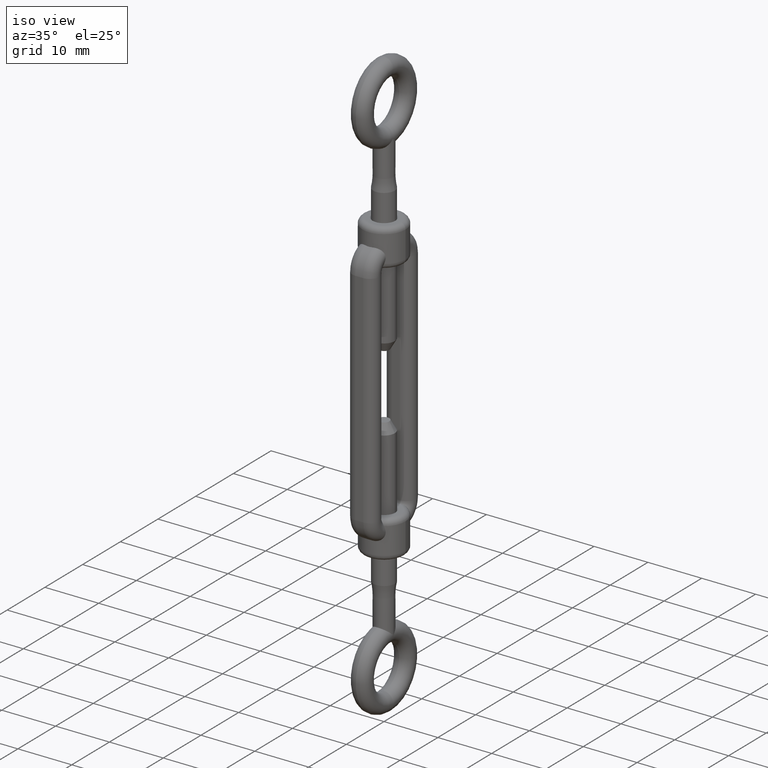
[diagram: clean part render]
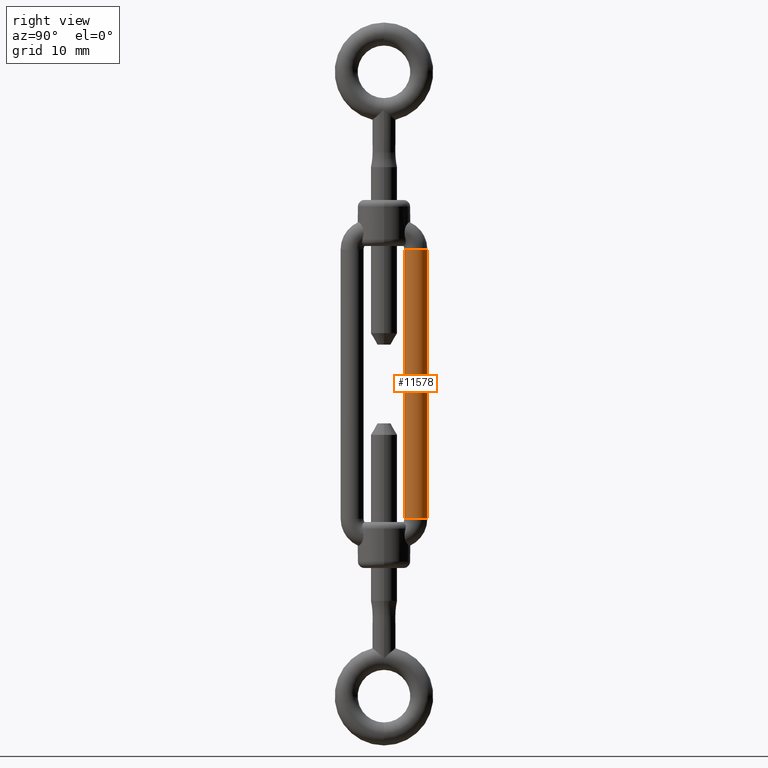
[diagram: tour spotlight — one face highlighted and labeled with its STEP entity id]
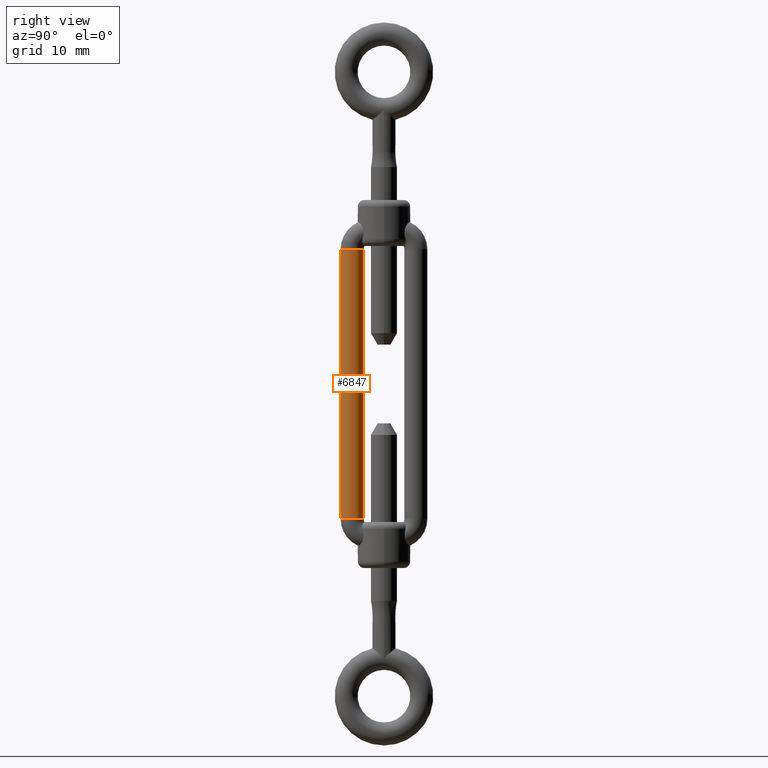
[diagram: tour spotlight — one face highlighted and labeled with its STEP entity id]
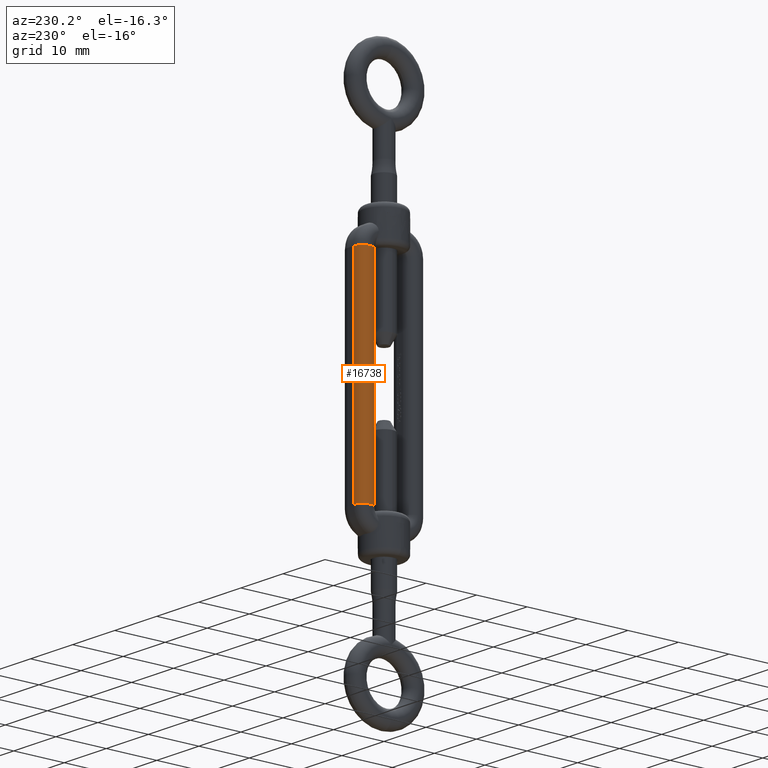
[diagram: tour spotlight — one face highlighted and labeled with its STEP entity id]
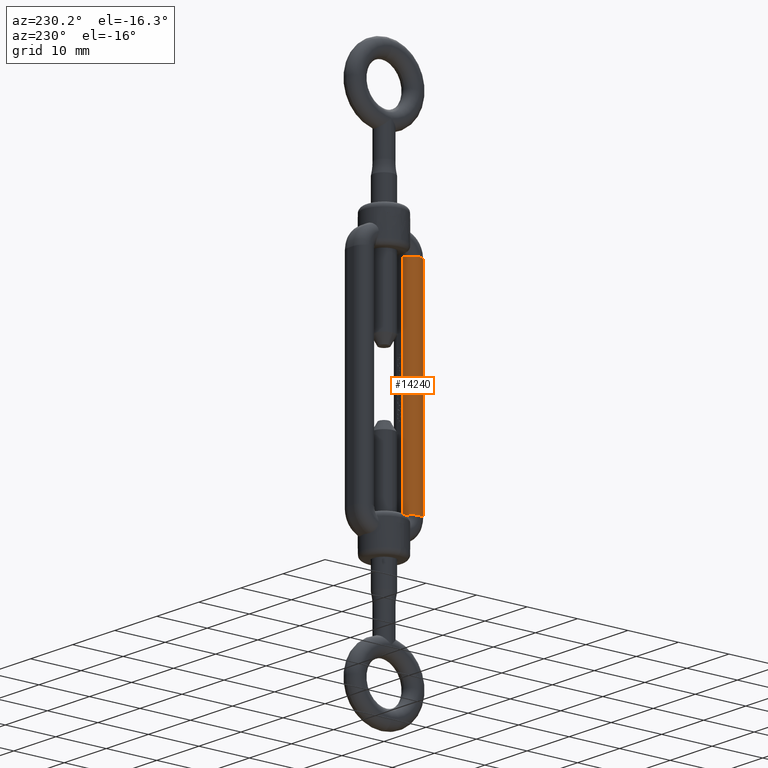
[diagram: tour spotlight — one face highlighted and labeled with its STEP entity id]
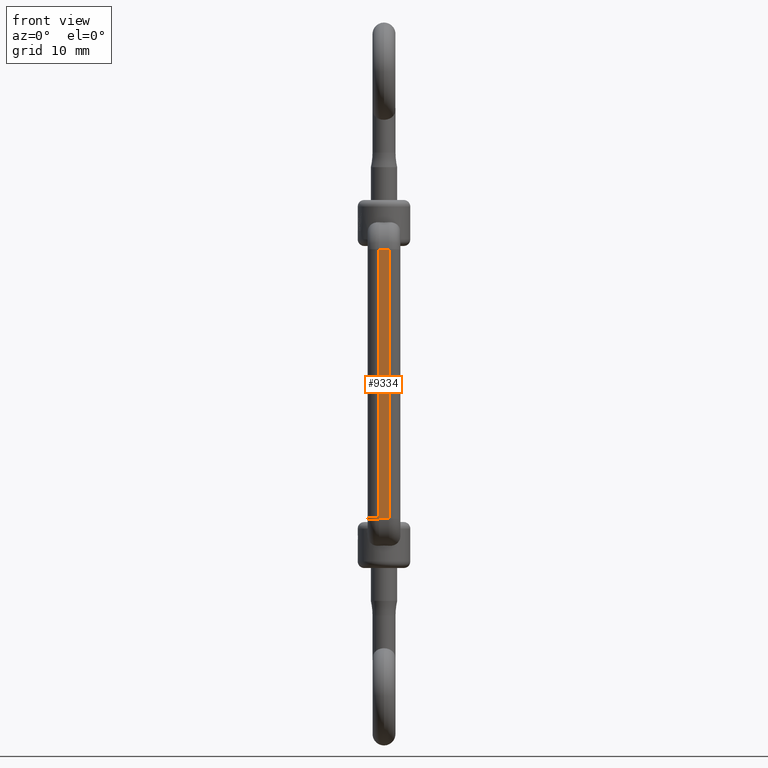
[diagram: tour spotlight — one face highlighted and labeled with its STEP entity id]
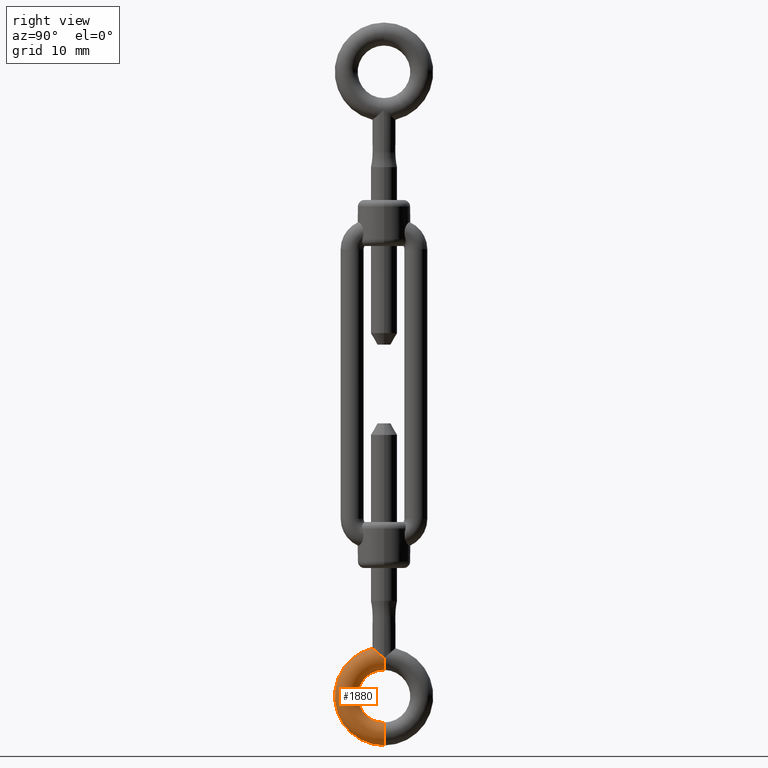
[diagram: tour spotlight — one face highlighted and labeled with its STEP entity id]
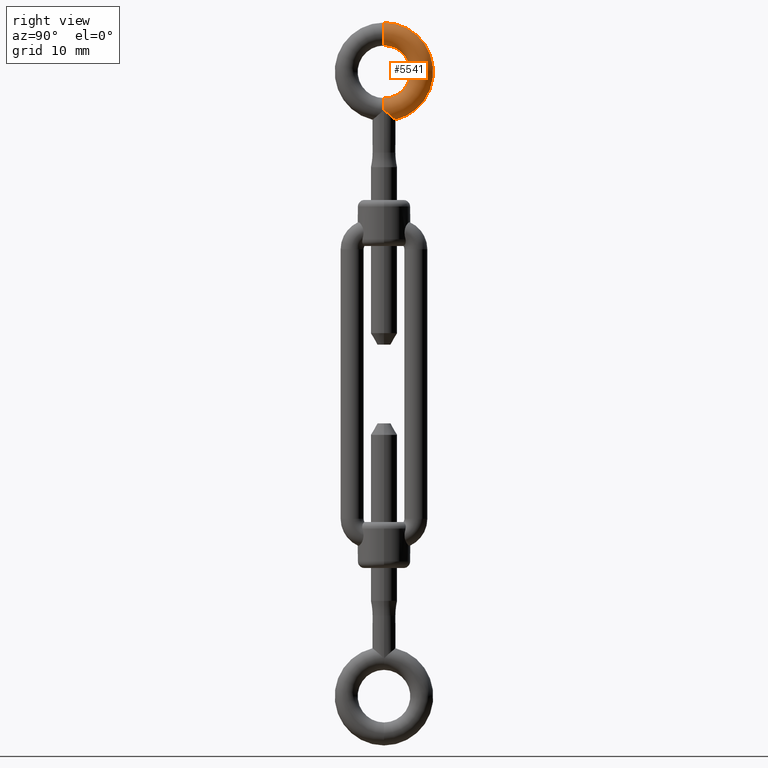
[diagram: tour spotlight — one face highlighted and labeled with its STEP entity id]
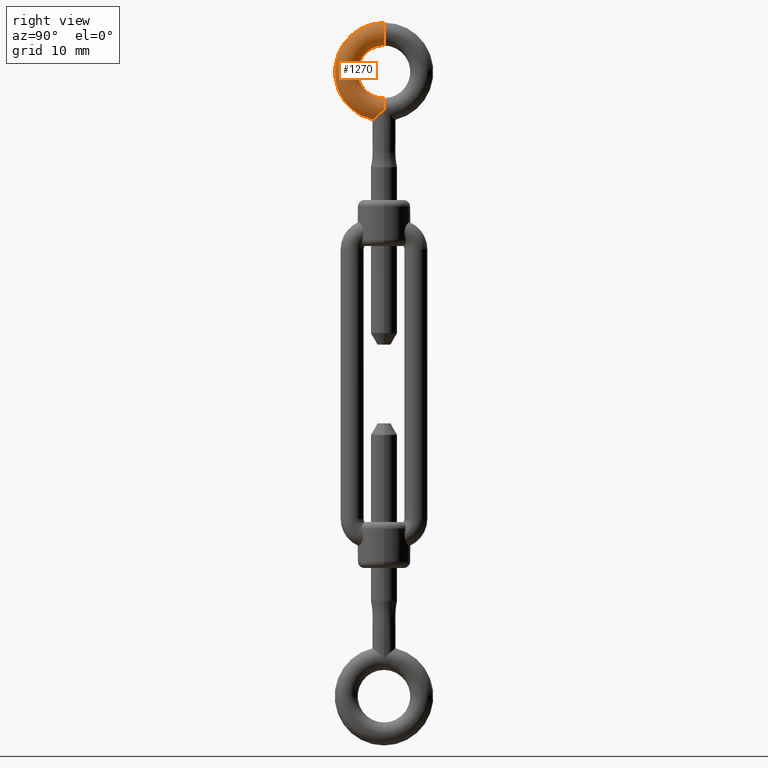
[diagram: tour spotlight — one face highlighted and labeled with its STEP entity id]
A machine part: a face-by-face anatomy tour. The part has 335 B-rep faces; the first image is the clean iso view, then the 8 largest visible faces are spotlighted one at a time (largest first), each with its STEP entity span.

Face 1 — right view, entity #11578. In plain terms, the highlighted cylindrical surface (edge-blend (fillet) strip) has radius 1.75 mm, axis along (0, -0, -1).
Definition (entity closure, byte-faithful):
#386 = VERTEX_POINT ( 'NONE', #1164 ) ;
#595 = DIRECTION ( 'NONE',  ( 0.0000000000000000000, -1.057758217059028900E-016, -1.000000000000000000 ) ) ;
#853 = LINE ( 'NONE', #10167, #12207 ) ;
#1164 = CARTESIAN_POINT ( 'NONE',  ( 0.7499999999999984500, 6.600000000000011200, -20.50000000000001100 ) ) ;
#2039 = AXIS2_PLACEMENT_3D ( 'NONE', #13196, #2549, #3950 ) ;
#2063 = CIRCLE ( 'NONE', #3704, 1.750000000000005100 ) ;
#2549 = DIRECTION ( 'NONE',  ( 0.0000000000000000000, -1.057758217059028900E-016, -1.000000000000000000 ) ) ;
#2746 = VERTEX_POINT ( 'NONE', #14922 ) ;
#2844 = FACE_OUTER_BOUND ( 'NONE', #8860, .T. ) ;
#3089 = DIRECTION ( 'NONE',  ( 0.0000000000000000000, -3.047392128993070700E-015, -1.000000000000000000 ) ) ;
#3170 = ORIENTED_EDGE ( 'NONE', *, *, #7733, .T. ) ;
#3320 = VERTEX_POINT ( 'NONE', #7524 ) ;
#3341 = VERTEX_POINT ( 'NONE', #3486 ) ;
#3486 = CARTESIAN_POINT ( 'NONE',  ( 0.7499999999999984500, 3.100000000000005400, 20.49999999999999300 ) ) ;
#3704 = AXIS2_PLACEMENT_3D ( 'NONE', #14894, #6975, #13551 ) ;
#3950 = DIRECTION ( 'NONE',  ( 0.0000000000000000000, 1.000000000000000000, 0.0000000000000000000 ) ) ;
#4870 = CIRCLE ( 'NONE', #10796, 1.750000000000005100 ) ;
#5246 = ORIENTED_EDGE ( 'NONE', *, *, #14179, .T. ) ;
#5540 = DIRECTION ( 'NONE',  ( 0.0000000000000000000, 1.000000000000000000, -3.965082230804118800E-015 ) ) ;
#6975 = DIRECTION ( 'NONE',  ( 0.0000000000000000000, -3.047392128993070700E-015, -1.000000000000000000 ) ) ;
#7524 = CARTESIAN_POINT ( 'NONE',  ( 0.7499999999999984500, 3.100000000000001000, -20.50000000000000000 ) ) ;
#7733 = EDGE_CURVE ( 'NONE', #3341, #3320, #12517, .T. ) ;
#8602 = ORIENTED_EDGE ( 'NONE', *, *, #9119, .F. ) ;
#8860 = EDGE_LOOP ( 'NONE', ( #5246, #3170, #8602, #9012 ) ) ;
#9012 = ORIENTED_EDGE ( 'NONE', *, *, #9361, .F. ) ;
#9119 = EDGE_CURVE ( 'NONE', #386, #3320, #2063, .T. ) ;
#9361 = EDGE_CURVE ( 'NONE', #2746, #386, #853, .T. ) ;
#9429 = VECTOR ( 'NONE', #595, 1000.000000000000000 ) ;
#10167 = CARTESIAN_POINT ( 'NONE',  ( 0.7499999999999984500, 6.600000000000015600, 20.49999999999998200 ) ) ;
#10796 = AXIS2_PLACEMENT_3D ( 'NONE', #16301, #3089, #5540 ) ;
#11578 = ADVANCED_FACE ( 'NONE', ( #2844 ), #15690, .T. ) ;
#12207 = VECTOR ( 'NONE', #12834, 1000.000000000000000 ) ;
#12408 = CARTESIAN_POINT ( 'NONE',  ( 0.7499999999999984500, 3.100000000000005400, 20.49999999999999300 ) ) ;
#12517 = LINE ( 'NONE', #12408, #9429 ) ;
#12834 = DIRECTION ( 'NONE',  ( 0.0000000000000000000, -1.057758217059028900E-016, -1.000000000000000000 ) ) ;
#13196 = CARTESIAN_POINT ( 'NONE',  ( 0.7499999999999984500, 4.850000000000010300, 20.49999999999998900 ) ) ;
#13551 = DIRECTION ( 'NONE',  ( 0.0000000000000000000, 1.000000000000000000, -3.965082230804118800E-015 ) ) ;
#14179 = EDGE_CURVE ( 'NONE', #2746, #3341, #4870, .T. ) ;
#14894 = CARTESIAN_POINT ( 'NONE',  ( 0.7499999999999984500, 4.850000000000005900, -20.50000000000000400 ) ) ;
#14922 = CARTESIAN_POINT ( 'NONE',  ( 0.7499999999999984500, 6.600000000000015600, 20.49999999999998200 ) ) ;
#15690 = CYLINDRICAL_SURFACE ( 'NONE', #2039, 1.750000000000005100 ) ;
#16301 = CARTESIAN_POINT ( 'NONE',  ( 0.7499999999999984500, 4.850000000000010300, 20.49999999999998900 ) ) ;

Face 2 — right view, entity #6847. In plain terms, the highlighted cylindrical surface (edge-blend (fillet) strip) has radius 1.75 mm, axis along (0, 0, -1).
Definition (entity closure, byte-faithful):
#658 = EDGE_CURVE ( 'NONE', #1441, #14562, #7889, .T. ) ;
#1441 = VERTEX_POINT ( 'NONE', #14668 ) ;
#1545 = ORIENTED_EDGE ( 'NONE', *, *, #9363, .F. ) ;
#1972 = ORIENTED_EDGE ( 'NONE', *, *, #15254, .T. ) ;
#2142 = DIRECTION ( 'NONE',  ( 0.0000000000000000000, 1.057758217059028900E-016, -1.000000000000000000 ) ) ;
#3411 = CARTESIAN_POINT ( 'NONE',  ( 0.7499999999999984500, -6.600000000000015600, 20.49999999999998200 ) ) ;
#3963 = CARTESIAN_POINT ( 'NONE',  ( 0.7499999999999984500, -6.600000000000015600, 20.49999999999998200 ) ) ;
#4108 = CARTESIAN_POINT ( 'NONE',  ( 0.7499999999999984500, -3.100000000000001000, -20.50000000000000000 ) ) ;
#4442 = VERTEX_POINT ( 'NONE', #3411 ) ;
#4700 = CARTESIAN_POINT ( 'NONE',  ( 0.7499999999999984500, -4.850000000000010300, 20.49999999999998900 ) ) ;
#5528 = CYLINDRICAL_SURFACE ( 'NONE', #11873, 1.750000000000005100 ) ;
#6847 = ADVANCED_FACE ( 'NONE', ( #13799 ), #5528, .T. ) ;
#7889 = CIRCLE ( 'NONE', #15179, 1.750000000000005100 ) ;
#8332 = VECTOR ( 'NONE', #15768, 1000.000000000000000 ) ;
#8991 = DIRECTION ( 'NONE',  ( 0.0000000000000000000, -1.000000000000000000, -3.965082230804118800E-015 ) ) ;
#9363 = EDGE_CURVE ( 'NONE', #4442, #14704, #10346, .T. ) ;
#10090 = ORIENTED_EDGE ( 'NONE', *, *, #17131, .F. ) ;
#10225 = AXIS2_PLACEMENT_3D ( 'NONE', #14410, #16943, #8991 ) ;
#10346 = CIRCLE ( 'NONE', #10225, 1.750000000000005100 ) ;
#11200 = LINE ( 'NONE', #16637, #16217 ) ;
#11379 = DIRECTION ( 'NONE',  ( 0.0000000000000000000, 1.000000000000000000, 0.0000000000000000000 ) ) ;
#11468 = CARTESIAN_POINT ( 'NONE',  ( 0.7499999999999984500, -4.850000000000005900, -20.50000000000000400 ) ) ;
#11873 = AXIS2_PLACEMENT_3D ( 'NONE', #4700, #2142, #11379 ) ;
#12327 = ORIENTED_EDGE ( 'NONE', *, *, #658, .T. ) ;
#12467 = CARTESIAN_POINT ( 'NONE',  ( 0.7499999999999984500, -3.100000000000005400, 20.49999999999999300 ) ) ;
#12565 = DIRECTION ( 'NONE',  ( -0.0000000000000000000, -3.047392128993070700E-015, 1.000000000000000000 ) ) ;
#13799 = FACE_OUTER_BOUND ( 'NONE', #16740, .T. ) ;
#14410 = CARTESIAN_POINT ( 'NONE',  ( 0.7499999999999984500, -4.850000000000010300, 20.49999999999998900 ) ) ;
#14562 = VERTEX_POINT ( 'NONE', #4108 ) ;
#14668 = CARTESIAN_POINT ( 'NONE',  ( 0.7499999999999984500, -6.600000000000011200, -20.50000000000001100 ) ) ;
#14704 = VERTEX_POINT ( 'NONE', #12467 ) ;
#15179 = AXIS2_PLACEMENT_3D ( 'NONE', #11468, #12565, #16592 ) ;
#15254 = EDGE_CURVE ( 'NONE', #4442, #1441, #16249, .T. ) ;
#15308 = DIRECTION ( 'NONE',  ( 0.0000000000000000000, 1.057758217059028900E-016, -1.000000000000000000 ) ) ;
#15768 = DIRECTION ( 'NONE',  ( 0.0000000000000000000, 1.057758217059028900E-016, -1.000000000000000000 ) ) ;
#16217 = VECTOR ( 'NONE', #15308, 1000.000000000000000 ) ;
#16249 = LINE ( 'NONE', #3963, #8332 ) ;
#16592 = DIRECTION ( 'NONE',  ( 0.0000000000000000000, -1.000000000000000000, -3.965082230804118800E-015 ) ) ;
#16637 = CARTESIAN_POINT ( 'NONE',  ( 0.7499999999999984500, -3.100000000000005400, 20.49999999999999300 ) ) ;
#16740 = EDGE_LOOP ( 'NONE', ( #1545, #1972, #12327, #10090 ) ) ;
#16943 = DIRECTION ( 'NONE',  ( -0.0000000000000000000, -3.047392128993070700E-015, 1.000000000000000000 ) ) ;
#17131 = EDGE_CURVE ( 'NONE', #14704, #14562, #11200, .T. ) ;

Face 3 — auxiliary view, entity #16738. In plain terms, the highlighted cylindrical surface (edge-blend (fillet) strip) has radius 1.75 mm, axis along (0, -0, -1).
Definition (entity closure, byte-faithful):
#382 = LINE ( 'NONE', #13721, #9232 ) ;
#417 = VECTOR ( 'NONE', #1858, 1000.000000000000000 ) ;
#840 = EDGE_LOOP ( 'NONE', ( #13885, #3067, #14879, #17033 ) ) ;
#1030 = AXIS2_PLACEMENT_3D ( 'NONE', #14880, #4251, #14770 ) ;
#1431 = VERTEX_POINT ( 'NONE', #9262 ) ;
#1514 = DIRECTION ( 'NONE',  ( 0.0000000000000000000, 1.000000000000000000, 0.0000000000000000000 ) ) ;
#1744 = CARTESIAN_POINT ( 'NONE',  ( -0.7499999999999984500, 6.600000000000011200, -20.50000000000001100 ) ) ;
#1858 = DIRECTION ( 'NONE',  ( 0.0000000000000000000, -1.057758217059028900E-016, -1.000000000000000000 ) ) ;
#2060 = VERTEX_POINT ( 'NONE', #10613 ) ;
#2672 = DIRECTION ( 'NONE',  ( 0.0000000000000000000, -1.057758217059028900E-016, -1.000000000000000000 ) ) ;
#2834 = CARTESIAN_POINT ( 'NONE',  ( -0.7499999999999984500, 4.850000000000005900, -20.50000000000000400 ) ) ;
#3067 = ORIENTED_EDGE ( 'NONE', *, *, #4199, .T. ) ;
#3444 = CIRCLE ( 'NONE', #6145, 1.750000000000005100 ) ;
#4104 = VERTEX_POINT ( 'NONE', #13493 ) ;
#4199 = EDGE_CURVE ( 'NONE', #1431, #12245, #10105, .T. ) ;
#4251 = DIRECTION ( 'NONE',  ( 0.0000000000000000000, -3.047392128993070700E-015, -1.000000000000000000 ) ) ;
#4702 = CARTESIAN_POINT ( 'NONE',  ( -0.7499999999999984500, 6.600000000000015600, 20.49999999999998200 ) ) ;
#5510 = EDGE_CURVE ( 'NONE', #4104, #1431, #13403, .T. ) ;
#6145 = AXIS2_PLACEMENT_3D ( 'NONE', #2834, #8080, #10686 ) ;
#6514 = EDGE_CURVE ( 'NONE', #4104, #2060, #382, .T. ) ;
#7241 = EDGE_CURVE ( 'NONE', #2060, #12245, #3444, .T. ) ;
#7681 = FACE_OUTER_BOUND ( 'NONE', #840, .T. ) ;
#8062 = AXIS2_PLACEMENT_3D ( 'NONE', #12145, #2672, #1514 ) ;
#8080 = DIRECTION ( 'NONE',  ( 0.0000000000000000000, -3.047392128993070700E-015, -1.000000000000000000 ) ) ;
#9232 = VECTOR ( 'NONE', #12265, 1000.000000000000000 ) ;
#9262 = CARTESIAN_POINT ( 'NONE',  ( -0.7499999999999984500, 6.600000000000015600, 20.49999999999998200 ) ) ;
#9550 = CYLINDRICAL_SURFACE ( 'NONE', #8062, 1.750000000000005100 ) ;
#10105 = LINE ( 'NONE', #4702, #417 ) ;
#10613 = CARTESIAN_POINT ( 'NONE',  ( -0.7499999999999984500, 3.100000000000001000, -20.50000000000000000 ) ) ;
#10686 = DIRECTION ( 'NONE',  ( 0.0000000000000000000, 1.000000000000000000, -3.965082230804118800E-015 ) ) ;
#12145 = CARTESIAN_POINT ( 'NONE',  ( -0.7499999999999984500, 4.850000000000010300, 20.49999999999998900 ) ) ;
#12245 = VERTEX_POINT ( 'NONE', #1744 ) ;
#12265 = DIRECTION ( 'NONE',  ( 0.0000000000000000000, -1.057758217059028900E-016, -1.000000000000000000 ) ) ;
#13403 = CIRCLE ( 'NONE', #1030, 1.750000000000005100 ) ;
#13493 = CARTESIAN_POINT ( 'NONE',  ( -0.7499999999999984500, 3.100000000000005400, 20.49999999999999300 ) ) ;
#13721 = CARTESIAN_POINT ( 'NONE',  ( -0.7499999999999984500, 3.100000000000005400, 20.49999999999999300 ) ) ;
#13885 = ORIENTED_EDGE ( 'NONE', *, *, #5510, .T. ) ;
#14770 = DIRECTION ( 'NONE',  ( 0.0000000000000000000, 1.000000000000000000, -3.965082230804118800E-015 ) ) ;
#14879 = ORIENTED_EDGE ( 'NONE', *, *, #7241, .F. ) ;
#14880 = CARTESIAN_POINT ( 'NONE',  ( -0.7499999999999984500, 4.850000000000010300, 20.49999999999998900 ) ) ;
#16738 = ADVANCED_FACE ( 'NONE', ( #7681 ), #9550, .T. ) ;
#17033 = ORIENTED_EDGE ( 'NONE', *, *, #6514, .F. ) ;

Face 4 — auxiliary view, entity #14240. In plain terms, the highlighted cylindrical surface (edge-blend (fillet) strip) has radius 1.75 mm, axis along (0, 0, -1).
Definition (entity closure, byte-faithful):
#122 = ORIENTED_EDGE ( 'NONE', *, *, #3065, .T. ) ;
#267 = AXIS2_PLACEMENT_3D ( 'NONE', #15820, #278, #10861 ) ;
#278 = DIRECTION ( 'NONE',  ( -0.0000000000000000000, -3.047392128993070700E-015, 1.000000000000000000 ) ) ;
#1596 = DIRECTION ( 'NONE',  ( 0.0000000000000000000, 1.057758217059028900E-016, -1.000000000000000000 ) ) ;
#1699 = CARTESIAN_POINT ( 'NONE',  ( -0.7499999999999984500, -4.850000000000010300, 20.49999999999998900 ) ) ;
#2052 = VECTOR ( 'NONE', #4969, 1000.000000000000000 ) ;
#2256 = DIRECTION ( 'NONE',  ( 0.0000000000000000000, -1.000000000000000000, -3.965082230804118800E-015 ) ) ;
#2864 = VERTEX_POINT ( 'NONE', #16322 ) ;
#3065 = EDGE_CURVE ( 'NONE', #9792, #2864, #8054, .T. ) ;
#3632 = ORIENTED_EDGE ( 'NONE', *, *, #15512, .F. ) ;
#4260 = FACE_OUTER_BOUND ( 'NONE', #10185, .T. ) ;
#4375 = VERTEX_POINT ( 'NONE', #10802 ) ;
#4407 = AXIS2_PLACEMENT_3D ( 'NONE', #14354, #8818, #2256 ) ;
#4969 = DIRECTION ( 'NONE',  ( 0.0000000000000000000, 1.057758217059028900E-016, -1.000000000000000000 ) ) ;
#5507 = EDGE_CURVE ( 'NONE', #2864, #4375, #10290, .T. ) ;
#7407 = DIRECTION ( 'NONE',  ( 0.0000000000000000000, 1.057758217059028900E-016, -1.000000000000000000 ) ) ;
#7603 = CARTESIAN_POINT ( 'NONE',  ( -0.7499999999999984500, -3.100000000000005400, 20.49999999999999300 ) ) ;
#8050 = CARTESIAN_POINT ( 'NONE',  ( -0.7499999999999984500, -6.600000000000015600, 20.49999999999998200 ) ) ;
#8054 = LINE ( 'NONE', #7603, #2052 ) ;
#8818 = DIRECTION ( 'NONE',  ( -0.0000000000000000000, -3.047392128993070700E-015, 1.000000000000000000 ) ) ;
#8952 = ORIENTED_EDGE ( 'NONE', *, *, #11023, .F. ) ;
#9052 = LINE ( 'NONE', #11493, #13833 ) ;
#9225 = VERTEX_POINT ( 'NONE', #8050 ) ;
#9792 = VERTEX_POINT ( 'NONE', #12221 ) ;
#10185 = EDGE_LOOP ( 'NONE', ( #3632, #122, #12451, #8952 ) ) ;
#10290 = CIRCLE ( 'NONE', #267, 1.750000000000005100 ) ;
#10802 = CARTESIAN_POINT ( 'NONE',  ( -0.7499999999999984500, -6.600000000000011200, -20.50000000000001100 ) ) ;
#10826 = DIRECTION ( 'NONE',  ( 0.0000000000000000000, 1.000000000000000000, 0.0000000000000000000 ) ) ;
#10861 = DIRECTION ( 'NONE',  ( 0.0000000000000000000, -1.000000000000000000, -3.965082230804118800E-015 ) ) ;
#11023 = EDGE_CURVE ( 'NONE', #9225, #4375, #9052, .T. ) ;
#11493 = CARTESIAN_POINT ( 'NONE',  ( -0.7499999999999984500, -6.600000000000015600, 20.49999999999998200 ) ) ;
#12104 = CYLINDRICAL_SURFACE ( 'NONE', #14372, 1.750000000000005100 ) ;
#12221 = CARTESIAN_POINT ( 'NONE',  ( -0.7499999999999984500, -3.100000000000005400, 20.49999999999999300 ) ) ;
#12451 = ORIENTED_EDGE ( 'NONE', *, *, #5507, .T. ) ;
#13833 = VECTOR ( 'NONE', #7407, 1000.000000000000000 ) ;
#14240 = ADVANCED_FACE ( 'NONE', ( #4260 ), #12104, .T. ) ;
#14354 = CARTESIAN_POINT ( 'NONE',  ( -0.7499999999999984500, -4.850000000000010300, 20.49999999999998900 ) ) ;
#14372 = AXIS2_PLACEMENT_3D ( 'NONE', #1699, #1596, #10826 ) ;
#15512 = EDGE_CURVE ( 'NONE', #9792, #9225, #15830, .T. ) ;
#15820 = CARTESIAN_POINT ( 'NONE',  ( -0.7499999999999984500, -4.850000000000005900, -20.50000000000000400 ) ) ;
#15830 = CIRCLE ( 'NONE', #4407, 1.750000000000005100 ) ;
#16322 = CARTESIAN_POINT ( 'NONE',  ( -0.7499999999999984500, -3.100000000000001000, -20.50000000000000000 ) ) ;

Face 5 — front view, entity #9334. In plain terms, the highlighted planar face has unit normal (0, 1, 0).
Definition (entity closure, byte-faithful):
#507 = AXIS2_PLACEMENT_3D ( 'NONE', #6146, #12647, #4746 ) ;
#1441 = VERTEX_POINT ( 'NONE', #14668 ) ;
#2479 = EDGE_CURVE ( 'NONE', #9225, #4442, #8069, .T. ) ;
#3185 = EDGE_CURVE ( 'NONE', #4375, #1441, #12407, .T. ) ;
#3411 = CARTESIAN_POINT ( 'NONE',  ( 0.7499999999999984500, -6.600000000000015600, 20.49999999999998200 ) ) ;
#3963 = CARTESIAN_POINT ( 'NONE',  ( 0.7499999999999984500, -6.600000000000015600, 20.49999999999998200 ) ) ;
#4375 = VERTEX_POINT ( 'NONE', #10802 ) ;
#4442 = VERTEX_POINT ( 'NONE', #3411 ) ;
#4565 = VECTOR ( 'NONE', #6156, 1000.000000000000000 ) ;
#4746 = DIRECTION ( 'NONE',  ( 0.0000000000000000000, -1.057758217059028900E-016, 1.000000000000000000 ) ) ;
#5815 = VECTOR ( 'NONE', #10069, 1000.000000000000000 ) ;
#6146 = CARTESIAN_POINT ( 'NONE',  ( -0.7499999999999984500, -6.600000000000015600, 20.49999999999998200 ) ) ;
#6156 = DIRECTION ( 'NONE',  ( 1.000000000000000000, 0.0000000000000000000, 0.0000000000000000000 ) ) ;
#6346 = CARTESIAN_POINT ( 'NONE',  ( -0.7499999999999984500, -6.600000000000011200, -20.50000000000001100 ) ) ;
#7407 = DIRECTION ( 'NONE',  ( 0.0000000000000000000, 1.057758217059028900E-016, -1.000000000000000000 ) ) ;
#7674 = ORIENTED_EDGE ( 'NONE', *, *, #15254, .F. ) ;
#8050 = CARTESIAN_POINT ( 'NONE',  ( -0.7499999999999984500, -6.600000000000015600, 20.49999999999998200 ) ) ;
#8069 = LINE ( 'NONE', #14072, #4565 ) ;
#8091 = ORIENTED_EDGE ( 'NONE', *, *, #3185, .T. ) ;
#8332 = VECTOR ( 'NONE', #15768, 1000.000000000000000 ) ;
#9052 = LINE ( 'NONE', #11493, #13833 ) ;
#9225 = VERTEX_POINT ( 'NONE', #8050 ) ;
#9334 = ADVANCED_FACE ( 'NONE', ( #15752 ), #11427, .F. ) ;
#10004 = EDGE_LOOP ( 'NONE', ( #12184, #13314, #8091, #7674 ) ) ;
#10069 = DIRECTION ( 'NONE',  ( 1.000000000000000000, 0.0000000000000000000, 0.0000000000000000000 ) ) ;
#10802 = CARTESIAN_POINT ( 'NONE',  ( -0.7499999999999984500, -6.600000000000011200, -20.50000000000001100 ) ) ;
#11023 = EDGE_CURVE ( 'NONE', #9225, #4375, #9052, .T. ) ;
#11427 = PLANE ( 'NONE',  #507 ) ;
#11493 = CARTESIAN_POINT ( 'NONE',  ( -0.7499999999999984500, -6.600000000000015600, 20.49999999999998200 ) ) ;
#12184 = ORIENTED_EDGE ( 'NONE', *, *, #2479, .F. ) ;
#12407 = LINE ( 'NONE', #6346, #5815 ) ;
#12647 = DIRECTION ( 'NONE',  ( -0.0000000000000000000, 1.000000000000000000, 1.057758217059028900E-016 ) ) ;
#13314 = ORIENTED_EDGE ( 'NONE', *, *, #11023, .T. ) ;
#13833 = VECTOR ( 'NONE', #7407, 1000.000000000000000 ) ;
#14072 = CARTESIAN_POINT ( 'NONE',  ( -0.7499999999999984500, -6.600000000000015600, 20.49999999999998200 ) ) ;
#14668 = CARTESIAN_POINT ( 'NONE',  ( 0.7499999999999984500, -6.600000000000011200, -20.50000000000001100 ) ) ;
#15254 = EDGE_CURVE ( 'NONE', #4442, #1441, #16249, .T. ) ;
#15752 = FACE_OUTER_BOUND ( 'NONE', #10004, .T. ) ;
#15768 = DIRECTION ( 'NONE',  ( 0.0000000000000000000, 1.057758217059028900E-016, -1.000000000000000000 ) ) ;
#16249 = LINE ( 'NONE', #3963, #8332 ) ;

Face 6 — right view, entity #1880. In plain terms, the highlighted toroidal blend (fillet) surface has major radius 5.75 mm and minor (blend) radius 1.75 mm.
Definition (entity closure, byte-faithful):
#269 = B_SPLINE_CURVE_WITH_KNOTS ( 'NONE', 3,
 ( #14721, #12095, #1421, #1526, #13438, #4077, #8206, #5521, #16063, #4197, #16229, #13321, #10700, #8096 ),
 .UNSPECIFIED., .F., .F.,
 ( 4, 2, 2, 2, 2, 2, 4 ),
 ( 0.003212995125030894200, 0.004016885392617450300, 0.004418830526410728700, 0.004820775660204007100, 0.005624665927790560600, 0.006026611061583838100, 0.006428556195377114900 ),
 .UNSPECIFIED. ) ;
#863 = ORIENTED_EDGE ( 'NONE', *, *, #1409, .F. ) ;
#879 = FACE_OUTER_BOUND ( 'NONE', #15100, .T. ) ;
#1297 = CARTESIAN_POINT ( 'NONE',  ( 0.0000000000000000000, -3.500000000000000000, -6.039690927702273600E-016 ) ) ;
#1313 = DIRECTION ( 'NONE',  ( 1.000000000000000000, 1.224646799147353200E-016, 1.742794396888373400E-032 ) ) ;
#1409 = EDGE_CURVE ( 'NONE', #3448, #15740, #15775, .T. ) ;
#1421 = CARTESIAN_POINT ( 'NONE',  ( 1.684158228702846500, -14.74143195564925400, 0.5390904376277412300 ) ) ;
#1526 = CARTESIAN_POINT ( 'NONE',  ( 1.517105283262433400, -14.60712424557723700, 0.8814864827718615900 ) ) ;
#1880 = ADVANCED_FACE ( 'NONE', ( #879 ), #16597, .T. ) ;
#1910 = AXIS2_PLACEMENT_3D ( 'NONE', #7596, #6535, #8967 ) ;
#2744 = CARTESIAN_POINT ( 'NONE',  ( 0.0000000000000000000, -7.500000000000000000, -8.182822826210140600E-016 ) ) ;
#2859 = CIRCLE ( 'NONE', #1910, 4.000000000000000000 ) ;
#3040 = CARTESIAN_POINT ( 'NONE',  ( 7.041719095097280900E-016, -13.25000000000000000, -1.636564565242028100E-015 ) ) ;
#3311 = AXIS2_PLACEMENT_3D ( 'NONE', #2744, #10755, #10704 ) ;
#3448 = VERTEX_POINT ( 'NONE', #6687 ) ;
#4077 = CARTESIAN_POINT ( 'NONE',  ( 1.301069729286346900, -14.43026217673550700, 1.176498089493722300 ) ) ;
#4197 = CARTESIAN_POINT ( 'NONE',  ( 0.4813851647967327100, -13.71338959315448300, 1.685603199662730300 ) ) ;
#5239 = DIRECTION ( 'NONE',  ( 0.0000000000000000000, 0.0000000000000000000, 1.000000000000000000 ) ) ;
#5483 = VERTEX_POINT ( 'NONE', #1297 ) ;
#5521 = CARTESIAN_POINT ( 'NONE',  ( 0.9591063090738872800, -14.14182032543251900, 1.481318761564825600 ) ) ;
#5551 = CIRCLE ( 'NONE', #7686, 1.750000000000000000 ) ;
#5794 = VERTEX_POINT ( 'NONE', #10341 ) ;
#6107 = VERTEX_POINT ( 'NONE', #9371 ) ;
#6115 = ORIENTED_EDGE ( 'NONE', *, *, #11553, .F. ) ;
#6535 = DIRECTION ( 'NONE',  ( -0.0000000000000000000, 1.423099621949589700E-016, -1.000000000000000000 ) ) ;
#6687 = CARTESIAN_POINT ( 'NONE',  ( 0.0000000000000000000, 1.084202172485504400E-016, 2.490424338411780800E-016 ) ) ;
#7427 = DIRECTION ( 'NONE',  ( -1.224646799147353500E-016, 1.000000000000000000, 0.0000000000000000000 ) ) ;
#7596 = CARTESIAN_POINT ( 'NONE',  ( 0.0000000000000000000, -7.500000000000000000, -6.039690927702272600E-016 ) ) ;
#7686 = AXIS2_PLACEMENT_3D ( 'NONE', #14026, #11563, #5239 ) ;
#8096 = CARTESIAN_POINT ( 'NONE',  ( -9.552612524160689800E-029, -13.25000000000000000, 1.750000000000022200 ) ) ;
#8206 = CARTESIAN_POINT ( 'NONE',  ( 1.219108316923304100, -14.36204301318948300, 1.260633752513306400 ) ) ;
#8918 = EDGE_CURVE ( 'NONE', #5483, #6107, #2859, .T. ) ;
#8967 = DIRECTION ( 'NONE',  ( 0.0000000000000000000, 1.000000000000000000, 1.423099621949590000E-016 ) ) ;
#9252 = CIRCLE ( 'NONE', #15129, 1.749999999999999800 ) ;
#9371 = CARTESIAN_POINT ( 'NONE',  ( 4.898587196589411800E-016, -11.50000000000000000, -6.039690927702270600E-016 ) ) ;
#9398 = CARTESIAN_POINT ( 'NONE',  ( 1.750000000000000000, -14.79297607290741100, -4.967261505415076400E-015 ) ) ;
#10341 = CARTESIAN_POINT ( 'NONE',  ( -9.552612524160689800E-029, -13.25000000000000000, 1.750000000000022200 ) ) ;
#10700 = CARTESIAN_POINT ( 'NONE',  ( 0.09476379763639382300, -13.34471508476386800, 1.749999999999998700 ) ) ;
#10704 = DIRECTION ( 'NONE',  ( 0.0000000000000000000, 1.000000000000000000, 1.423099621949589700E-016 ) ) ;
#10755 = DIRECTION ( 'NONE',  ( -0.0000000000000000000, 1.423099621949589700E-016, -1.000000000000000000 ) ) ;
#11476 = EDGE_CURVE ( 'NONE', #6107, #5794, #9252, .T. ) ;
#11553 = EDGE_CURVE ( 'NONE', #5483, #3448, #5551, .T. ) ;
#11563 = DIRECTION ( 'NONE',  ( -1.000000000000000000, 0.0000000000000000000, 0.0000000000000000000 ) ) ;
#11640 = CARTESIAN_POINT ( 'NONE',  ( 0.0000000000000000000, -7.500000000000000000, -8.182822826210140600E-016 ) ) ;
#12095 = CARTESIAN_POINT ( 'NONE',  ( 1.750000000000032200, -14.79297607290758000, 0.2700538098490614100 ) ) ;
#12180 = EDGE_CURVE ( 'NONE', #15740, #5794, #269, .T. ) ;
#12421 = ORIENTED_EDGE ( 'NONE', *, *, #11476, .T. ) ;
#12477 = ORIENTED_EDGE ( 'NONE', *, *, #12180, .F. ) ;
#13112 = DIRECTION ( 'NONE',  ( 0.0000000000000000000, 1.000000000000000000, 1.423099621949589700E-016 ) ) ;
#13321 = CARTESIAN_POINT ( 'NONE',  ( 0.1918758031881559500, -13.43948832755127600, 1.742194083755520100 ) ) ;
#13438 = CARTESIAN_POINT ( 'NONE',  ( 1.449626109109677600, -14.55244157765660000, 0.9876812941608048600 ) ) ;
#14026 = CARTESIAN_POINT ( 'NONE',  ( 0.0000000000000000000, -1.749999999999999800, 0.0000000000000000000 ) ) ;
#14721 = CARTESIAN_POINT ( 'NONE',  ( 1.750000000000000000, -14.79297607290741100, -4.967261505415076400E-015 ) ) ;
#14953 = AXIS2_PLACEMENT_3D ( 'NONE', #11640, #15849, #13112 ) ;
#15021 = ORIENTED_EDGE ( 'NONE', *, *, #8918, .T. ) ;
#15100 = EDGE_LOOP ( 'NONE', ( #863, #6115, #15021, #12421, #12477 ) ) ;
#15129 = AXIS2_PLACEMENT_3D ( 'NONE', #3040, #1313, #7427 ) ;
#15740 = VERTEX_POINT ( 'NONE', #9398 ) ;
#15775 = CIRCLE ( 'NONE', #3311, 7.500000000000000000 ) ;
#15849 = DIRECTION ( 'NONE',  ( -0.0000000000000000000, 1.423099621949589700E-016, -1.000000000000000000 ) ) ;
#16063 = CARTESIAN_POINT ( 'NONE',  ( 0.7713981378995125000, -13.97801682233671100, 1.584109910089432500 ) ) ;
#16229 = CARTESIAN_POINT ( 'NONE',  ( 0.3847196433550942300, -13.62333452908117300, 1.709984603830855700 ) ) ;
#16597 = TOROIDAL_SURFACE ( 'NONE', #14953, 5.750000000000000000, 1.750000000000000000 ) ;

Face 7 — right view, entity #5541. In plain terms, the highlighted toroidal blend (fillet) surface has major radius 5.75 mm and minor (blend) radius 1.75 mm.
Definition (entity closure, byte-faithful):
#28 = CARTESIAN_POINT ( 'NONE',  ( 4.898587196589411800E-016, -11.50000000000000000, -6.039690927702264700E-016 ) ) ;
#296 = CIRCLE ( 'NONE', #7710, 7.500000000000000000 ) ;
#349 = DIRECTION ( 'NONE',  ( -1.224646799147353500E-016, 1.000000000000000000, 0.0000000000000000000 ) ) ;
#624 = VERTEX_POINT ( 'NONE', #11230 ) ;
#646 = CARTESIAN_POINT ( 'NONE',  ( 0.0000000000000000000, -3.500000000000000000, -6.039690927702267600E-016 ) ) ;
#1179 = CARTESIAN_POINT ( 'NONE',  ( -1.750000000000000000, -14.79297607290741100, -0.1346006798177146500 ) ) ;
#1195 = VERTEX_POINT ( 'NONE', #646 ) ;
#1237 = CARTESIAN_POINT ( 'NONE',  ( -1.449694704314161700, -14.55249835651754800, -0.9876031791507212700 ) ) ;
#1290 = CARTESIAN_POINT ( 'NONE',  ( -0.7720928522844274800, -13.97863472973736700, -1.583784484838959100 ) ) ;
#1296 = EDGE_CURVE ( 'NONE', #12576, #1195, #7466, .T. ) ;
#1587 = B_SPLINE_CURVE_WITH_KNOTS ( 'NONE', 3,
 ( #6343, #1179, #9181, #6513, #11793, #17080, #1237, #7911, #3895, #3720, #1290, #5284, #10467, #5111 ),
 .UNSPECIFIED., .F., .F.,
 ( 4, 2, 2, 2, 2, 2, 4 ),
 ( 0.003234267388771162300, 0.003641100614888048000, 0.004047933841004933300, 0.004454767067121819500, 0.004861600293238704800, 0.005675266745472475400, 0.006488933197706246900 ),
 .UNSPECIFIED. ) ;
#1738 = DIRECTION ( 'NONE',  ( -0.0000000000000000000, 1.423099621949588700E-016, -1.000000000000000000 ) ) ;
#2694 = VERTEX_POINT ( 'NONE', #10900 ) ;
#2765 = ORIENTED_EDGE ( 'NONE', *, *, #16653, .F. ) ;
#3604 = CARTESIAN_POINT ( 'NONE',  ( 0.0000000000000000000, -7.500000000000000000, -8.182822826210135700E-016 ) ) ;
#3720 = CARTESIAN_POINT ( 'NONE',  ( -0.9600127264466309400, -14.14257816443164000, -1.480428686936889400 ) ) ;
#3895 = CARTESIAN_POINT ( 'NONE',  ( -1.217838959239358800, -14.36097278892466300, -1.261771236147857000 ) ) ;
#5111 = CARTESIAN_POINT ( 'NONE',  ( 5.645285852987865700E-027, -13.25000000000000000, -1.750000000000000900 ) ) ;
#5284 = CARTESIAN_POINT ( 'NONE',  ( -0.3852695614466261100, -13.62570323446409600, -1.719321968680687300 ) ) ;
#5541 = ADVANCED_FACE ( 'NONE', ( #9466 ), #14851, .T. ) ;
#5564 = AXIS2_PLACEMENT_3D ( 'NONE', #5925, #1738, #16333 ) ;
#5766 = DIRECTION ( 'NONE',  ( 1.000000000000000000, 1.224646799147353200E-016, 1.742794396888372300E-032 ) ) ;
#5925 = CARTESIAN_POINT ( 'NONE',  ( 0.0000000000000000000, -7.500000000000000000, -8.182822826210135700E-016 ) ) ;
#6291 = DIRECTION ( 'NONE',  ( 0.0000000000000000000, 0.0000000000000000000, 1.000000000000000000 ) ) ;
#6343 = CARTESIAN_POINT ( 'NONE',  ( -1.750000000000000000, -14.79297607290741100, -1.577750232611953600E-015 ) ) ;
#6513 = CARTESIAN_POINT ( 'NONE',  ( -1.673163314596055600, -14.73218205982129100, -0.5297443577829394900 ) ) ;
#7466 = CIRCLE ( 'NONE', #11378, 4.000000000000000000 ) ;
#7541 = CARTESIAN_POINT ( 'NONE',  ( 0.0000000000000000000, -7.500000000000000000, -6.039690927702266700E-016 ) ) ;
#7710 = AXIS2_PLACEMENT_3D ( 'NONE', #3604, #14244, #11546 ) ;
#7911 = CARTESIAN_POINT ( 'NONE',  ( -1.300900210641580100, -14.43012239368454700, -1.176704473152808200 ) ) ;
#7932 = AXIS2_PLACEMENT_3D ( 'NONE', #12918, #14149, #6291 ) ;
#8031 = EDGE_CURVE ( 'NONE', #624, #12576, #10037, .T. ) ;
#8584 = CARTESIAN_POINT ( 'NONE',  ( -1.750000000000000000, -14.79297607290741100, -1.577750232611953600E-015 ) ) ;
#9181 = CARTESIAN_POINT ( 'NONE',  ( -1.733906745827595200, -14.78031639460563600, -0.2714257885435308900 ) ) ;
#9466 = FACE_OUTER_BOUND ( 'NONE', #12078, .T. ) ;
#10037 = CIRCLE ( 'NONE', #15106, 1.749999999999999800 ) ;
#10467 = CARTESIAN_POINT ( 'NONE',  ( -0.1918324580474454200, -13.44173384753478800, -1.750000000000000900 ) ) ;
#10900 = CARTESIAN_POINT ( 'NONE',  ( 0.0000000000000000000, 1.084202172485504400E-016, 2.490424338411780800E-016 ) ) ;
#11024 = CIRCLE ( 'NONE', #7932, 1.750000000000000000 ) ;
#11230 = CARTESIAN_POINT ( 'NONE',  ( 5.645285852987865700E-027, -13.25000000000000000, -1.750000000000000900 ) ) ;
#11341 = DIRECTION ( 'NONE',  ( 0.0000000000000000000, 1.000000000000000000, 1.423099621949588700E-016 ) ) ;
#11378 = AXIS2_PLACEMENT_3D ( 'NONE', #7541, #11512, #11341 ) ;
#11512 = DIRECTION ( 'NONE',  ( -0.0000000000000000000, 1.423099621949588700E-016, -1.000000000000000000 ) ) ;
#11546 = DIRECTION ( 'NONE',  ( 0.0000000000000000000, 1.000000000000000000, 1.423099621949589000E-016 ) ) ;
#11625 = ORIENTED_EDGE ( 'NONE', *, *, #15149, .T. ) ;
#11793 = CARTESIAN_POINT ( 'NONE',  ( -1.629171173080286700, -14.69722296284966000, -0.6517677642536324800 ) ) ;
#12078 = EDGE_LOOP ( 'NONE', ( #2765, #16618, #11625, #14638, #14131 ) ) ;
#12576 = VERTEX_POINT ( 'NONE', #28 ) ;
#12918 = CARTESIAN_POINT ( 'NONE',  ( 0.0000000000000000000, -1.749999999999999800, 0.0000000000000000000 ) ) ;
#14131 = ORIENTED_EDGE ( 'NONE', *, *, #8031, .F. ) ;
#14149 = DIRECTION ( 'NONE',  ( -1.000000000000000000, 0.0000000000000000000, 0.0000000000000000000 ) ) ;
#14244 = DIRECTION ( 'NONE',  ( -0.0000000000000000000, 1.423099621949588700E-016, -1.000000000000000000 ) ) ;
#14638 = ORIENTED_EDGE ( 'NONE', *, *, #1296, .F. ) ;
#14851 = TOROIDAL_SURFACE ( 'NONE', #5564, 5.750000000000000000, 1.750000000000000000 ) ;
#15106 = AXIS2_PLACEMENT_3D ( 'NONE', #16187, #5766, #349 ) ;
#15149 = EDGE_CURVE ( 'NONE', #2694, #1195, #11024, .T. ) ;
#16187 = CARTESIAN_POINT ( 'NONE',  ( 7.041719095097280900E-016, -13.25000000000000000, -1.636564565242027100E-015 ) ) ;
#16333 = DIRECTION ( 'NONE',  ( 0.0000000000000000000, 1.000000000000000000, 1.423099621949588700E-016 ) ) ;
#16358 = EDGE_CURVE ( 'NONE', #16924, #2694, #296, .T. ) ;
#16618 = ORIENTED_EDGE ( 'NONE', *, *, #16358, .T. ) ;
#16653 = EDGE_CURVE ( 'NONE', #16924, #624, #1587, .T. ) ;
#16924 = VERTEX_POINT ( 'NONE', #8584 ) ;
#17080 = CARTESIAN_POINT ( 'NONE',  ( -1.516541877302765200, -14.60667161725719300, -0.8826667910955876600 ) ) ;

Face 8 — right view, entity #1270. In plain terms, the highlighted toroidal blend (fillet) surface has major radius 5.75 mm and minor (blend) radius 1.75 mm.
Definition (entity closure, byte-faithful):
#28 = CARTESIAN_POINT ( 'NONE',  ( 4.898587196589411800E-016, -11.50000000000000000, -6.039690927702264700E-016 ) ) ;
#349 = DIRECTION ( 'NONE',  ( -1.224646799147353500E-016, 1.000000000000000000, 0.0000000000000000000 ) ) ;
#618 = ORIENTED_EDGE ( 'NONE', *, *, #10670, .F. ) ;
#624 = VERTEX_POINT ( 'NONE', #11230 ) ;
#646 = CARTESIAN_POINT ( 'NONE',  ( 0.0000000000000000000, -3.500000000000000000, -6.039690927702267600E-016 ) ) ;
#1195 = VERTEX_POINT ( 'NONE', #646 ) ;
#1249 = CARTESIAN_POINT ( 'NONE',  ( 1.750000000000000000, -14.79297607290741100, -4.967261505415076400E-015 ) ) ;
#1270 = ADVANCED_FACE ( 'NONE', ( #10772 ), #2732, .T. ) ;
#1576 = CIRCLE ( 'NONE', #5611, 4.000000000000000000 ) ;
#2263 = CIRCLE ( 'NONE', #5895, 7.500000000000000000 ) ;
#2450 = CARTESIAN_POINT ( 'NONE',  ( 1.450123097006275100, -14.55284480480824500, -0.9869115621093610400 ) ) ;
#2694 = VERTEX_POINT ( 'NONE', #10900 ) ;
#2732 = TOROIDAL_SURFACE ( 'NONE', #8942, 5.750000000000000000, 1.750000000000000000 ) ;
#3307 = EDGE_CURVE ( 'NONE', #2694, #13051, #2263, .T. ) ;
#3569 = DIRECTION ( 'NONE',  ( -0.0000000000000000000, 1.423099621949588700E-016, -1.000000000000000000 ) ) ;
#3906 = ORIENTED_EDGE ( 'NONE', *, *, #12920, .F. ) ;
#3967 = B_SPLINE_CURVE_WITH_KNOTS ( 'NONE', 3,
 ( #14498, #13093, #14439, #16914, #7759, #16977, #8906, #11684, #10314, #2450, #9137, #5009, #6528, #14318, #13154, #1249 ),
 .UNSPECIFIED., .F., .F.,
 ( 4, 2, 2, 2, 2, 2, 2, 4 ),
 ( -8.366606524157698100E-006, 0.0003943036099202226500, 0.0007969738263646030200, 0.001602314259253367300, 0.002004984475697749000, 0.002407654692142130500, 0.002810324908586512300, 0.003212995125030894200 ),
 .UNSPECIFIED. ) ;
#4784 = DIRECTION ( 'NONE',  ( 0.0000000000000000000, 1.000000000000000000, 1.423099621949588700E-016 ) ) ;
#5009 = CARTESIAN_POINT ( 'NONE',  ( 1.629078741769941900, -14.69714611839125600, -0.6517668852793913100 ) ) ;
#5166 = CARTESIAN_POINT ( 'NONE',  ( 0.0000000000000000000, -7.500000000000000000, -8.182822826210135700E-016 ) ) ;
#5288 = DIRECTION ( 'NONE',  ( 0.0000000000000000000, 1.000000000000000000, 1.423099621949589000E-016 ) ) ;
#5611 = AXIS2_PLACEMENT_3D ( 'NONE', #14845, #8223, #9571 ) ;
#5766 = DIRECTION ( 'NONE',  ( 1.000000000000000000, 1.224646799147353200E-016, 1.742794396888372300E-032 ) ) ;
#5895 = AXIS2_PLACEMENT_3D ( 'NONE', #5166, #10410, #5288 ) ;
#6291 = DIRECTION ( 'NONE',  ( 0.0000000000000000000, 0.0000000000000000000, 1.000000000000000000 ) ) ;
#6528 = CARTESIAN_POINT ( 'NONE',  ( 1.673583558010570500, -14.73251642385526400, -0.5287092703762631400 ) ) ;
#6741 = ORIENTED_EDGE ( 'NONE', *, *, #8031, .T. ) ;
#7759 = CARTESIAN_POINT ( 'NONE',  ( 0.4816480076000411200, -13.71363253995283500, -1.685527220098521400 ) ) ;
#7932 = AXIS2_PLACEMENT_3D ( 'NONE', #12918, #14149, #6291 ) ;
#8031 = EDGE_CURVE ( 'NONE', #624, #12576, #10037, .T. ) ;
#8223 = DIRECTION ( 'NONE',  ( -0.0000000000000000000, 1.423099621949588700E-016, -1.000000000000000000 ) ) ;
#8906 = CARTESIAN_POINT ( 'NONE',  ( 0.9600744377407867100, -14.14265991900914800, -1.480736298943994700 ) ) ;
#8942 = AXIS2_PLACEMENT_3D ( 'NONE', #12803, #3569, #4784 ) ;
#9137 = CARTESIAN_POINT ( 'NONE',  ( 1.517635384840042100, -14.60755328117774500, -0.8806136827888573200 ) ) ;
#9571 = DIRECTION ( 'NONE',  ( 0.0000000000000000000, 1.000000000000000000, 1.423099621949588700E-016 ) ) ;
#10037 = CIRCLE ( 'NONE', #15106, 1.749999999999999800 ) ;
#10314 = CARTESIAN_POINT ( 'NONE',  ( 1.302106243310621400, -14.43112011317151500, -1.175317301424474400 ) ) ;
#10410 = DIRECTION ( 'NONE',  ( -0.0000000000000000000, 1.423099621949588700E-016, -1.000000000000000000 ) ) ;
#10426 = EDGE_LOOP ( 'NONE', ( #13615, #13430, #618, #6741, #3906 ) ) ;
#10670 = EDGE_CURVE ( 'NONE', #624, #13051, #3967, .T. ) ;
#10772 = FACE_OUTER_BOUND ( 'NONE', #10426, .T. ) ;
#10900 = CARTESIAN_POINT ( 'NONE',  ( 0.0000000000000000000, 1.084202172485504400E-016, 2.490424338411780800E-016 ) ) ;
#11024 = CIRCLE ( 'NONE', #7932, 1.750000000000000000 ) ;
#11230 = CARTESIAN_POINT ( 'NONE',  ( 5.645285852987865700E-027, -13.25000000000000000, -1.750000000000000900 ) ) ;
#11684 = CARTESIAN_POINT ( 'NONE',  ( 1.220232343501182600, -14.36298518442677400, -1.259558953017700500 ) ) ;
#12576 = VERTEX_POINT ( 'NONE', #28 ) ;
#12803 = CARTESIAN_POINT ( 'NONE',  ( 0.0000000000000000000, -7.500000000000000000, -8.182822826210135700E-016 ) ) ;
#12918 = CARTESIAN_POINT ( 'NONE',  ( 0.0000000000000000000, -1.749999999999999800, 0.0000000000000000000 ) ) ;
#12920 = EDGE_CURVE ( 'NONE', #1195, #12576, #1576, .T. ) ;
#13051 = VERTEX_POINT ( 'NONE', #16412 ) ;
#13093 = CARTESIAN_POINT ( 'NONE',  ( 0.09493474530273698900, -13.34488594457030800, -1.750000000000000900 ) ) ;
#13154 = CARTESIAN_POINT ( 'NONE',  ( 1.750000000000026200, -14.79297607290757500, -0.1352704846023879400 ) ) ;
#13430 = ORIENTED_EDGE ( 'NONE', *, *, #3307, .T. ) ;
#13615 = ORIENTED_EDGE ( 'NONE', *, *, #15149, .F. ) ;
#14149 = DIRECTION ( 'NONE',  ( -1.000000000000000000, 0.0000000000000000000, 0.0000000000000000000 ) ) ;
#14318 = CARTESIAN_POINT ( 'NONE',  ( 1.734522865417220400, -14.78080324253530800, -0.2680407572925352400 ) ) ;
#14439 = CARTESIAN_POINT ( 'NONE',  ( 0.1920438067228342500, -13.43965152553330500, -1.742178010684802600 ) ) ;
#14498 = CARTESIAN_POINT ( 'NONE',  ( 5.645285852987865700E-027, -13.25000000000000000, -1.750000000000000900 ) ) ;
#14845 = CARTESIAN_POINT ( 'NONE',  ( 0.0000000000000000000, -7.500000000000000000, -6.039690927702266700E-016 ) ) ;
#15106 = AXIS2_PLACEMENT_3D ( 'NONE', #16187, #5766, #349 ) ;
#15149 = EDGE_CURVE ( 'NONE', #2694, #1195, #11024, .T. ) ;
#16187 = CARTESIAN_POINT ( 'NONE',  ( 7.041719095097280900E-016, -13.25000000000000000, -1.636564565242027100E-015 ) ) ;
#16412 = CARTESIAN_POINT ( 'NONE',  ( 1.750000000000000000, -14.79297607290741100, -4.967261505415076400E-015 ) ) ;
#16914 = CARTESIAN_POINT ( 'NONE',  ( 0.3849694407476768100, -13.62356963184511300, -1.709930868282303800 ) ) ;
#16977 = CARTESIAN_POINT ( 'NONE',  ( 0.7716043671831025500, -13.97819876503109700, -1.584005666724753500 ) ) ;